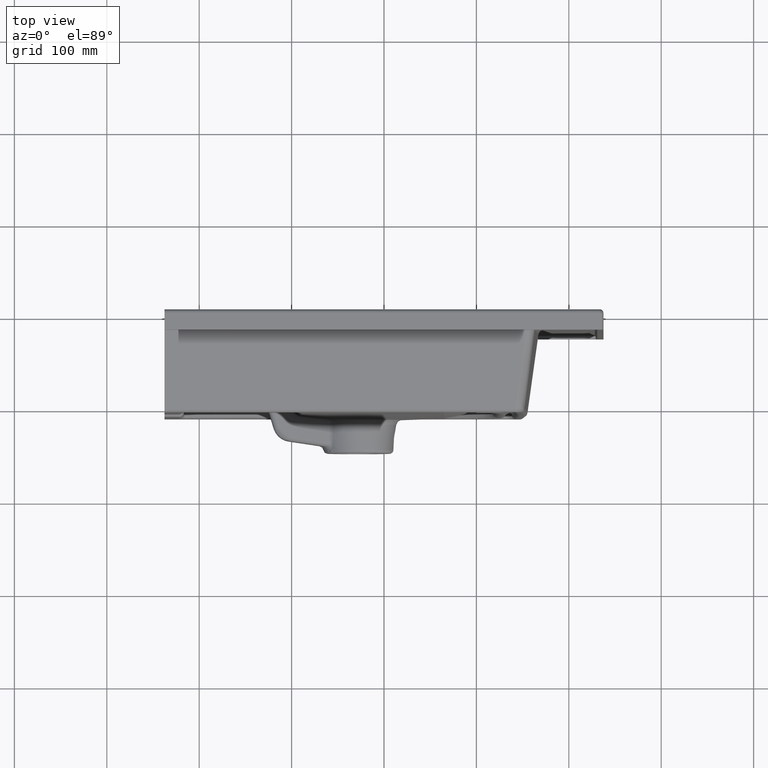
[diagram: clean part render]
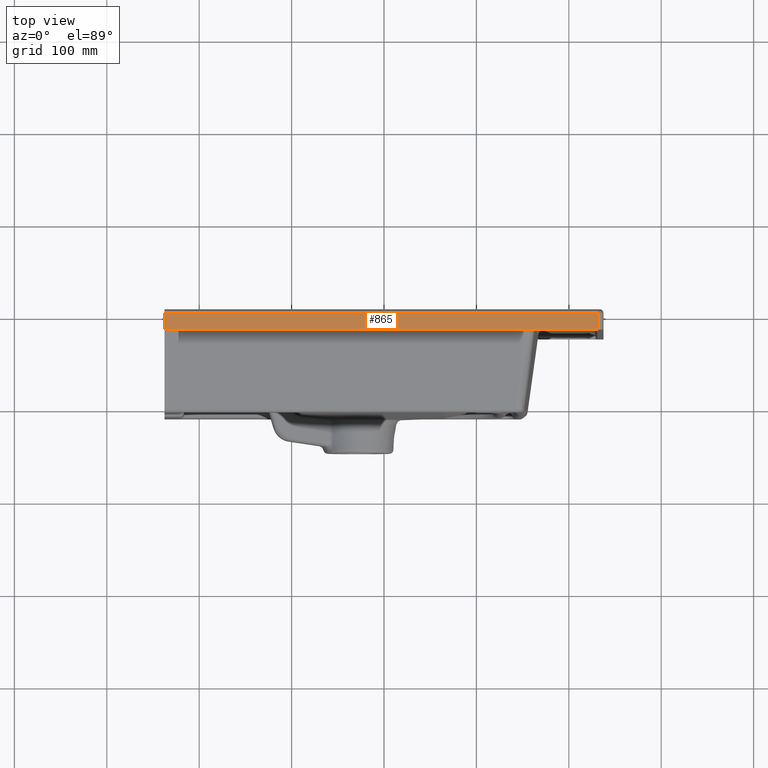
[diagram: same view with one face highlighted and labeled with its STEP entity id]
A machine part, top view. The second image highlights one B-rep face of the part: STEP entity #865.
In plain terms, the highlighted planar face has unit normal (0, 0, 1).
Its self-contained STEP definition (entity closure, byte-faithful):
#234=PLANE('',#4407);
#532=LINE('',#8523,#715);
#533=LINE('',#8526,#716);
#534=LINE('',#8528,#717);
#535=LINE('',#8530,#718);
#715=VECTOR('',#4982,1.);
#716=VECTOR('',#4983,1.);
#717=VECTOR('',#4984,1.);
#718=VECTOR('',#4985,1.);
#865=ADVANCED_FACE('',(#1231),#234,.T.);
#1231=FACE_OUTER_BOUND('',#1493,.T.);
#1493=EDGE_LOOP('',(#2162,#2163,#2164,#2165));
#2162=ORIENTED_EDGE('',*,*,#3801,.T.);
#2163=ORIENTED_EDGE('',*,*,#3802,.T.);
#2164=ORIENTED_EDGE('',*,*,#3803,.F.);
#2165=ORIENTED_EDGE('',*,*,#3804,.F.);
#3403=VERTEX_POINT('',#8524);
#3404=VERTEX_POINT('',#8525);
#3405=VERTEX_POINT('',#8527);
#3406=VERTEX_POINT('',#8529);
#3801=EDGE_CURVE('',#3403,#3404,#532,.T.);
#3802=EDGE_CURVE('',#3404,#3405,#533,.T.);
#3803=EDGE_CURVE('',#3406,#3405,#534,.T.);
#3804=EDGE_CURVE('',#3403,#3406,#535,.T.);
#4407=AXIS2_PLACEMENT_3D('',#8531,#4986,#4987);
#4982=DIRECTION('',(0.,1.,0.));
#4983=DIRECTION('',(-1.,0.,0.));
#4984=DIRECTION('',(0.,1.,0.));
#4985=DIRECTION('',(-1.,0.,0.));
#4986=DIRECTION('',(0.,0.,1.));
#4987=DIRECTION('',(1.,0.,0.));
#8523=CARTESIAN_POINT('',(232.5,-120.,307.5));
#8524=CARTESIAN_POINT('',(232.5,-22.,307.5));
#8525=CARTESIAN_POINT('',(232.5,-4.,307.5));
#8526=CARTESIAN_POINT('',(-237.5,-4.,307.5));
#8527=CARTESIAN_POINT('',(-237.5,-4.,307.5));
#8528=CARTESIAN_POINT('',(-237.5,-120.,307.5));
#8529=CARTESIAN_POINT('',(-237.5,-22.,307.5));
#8530=CARTESIAN_POINT('',(-237.5,-22.,307.5));
#8531=CARTESIAN_POINT('',(-237.5,-120.,307.5));